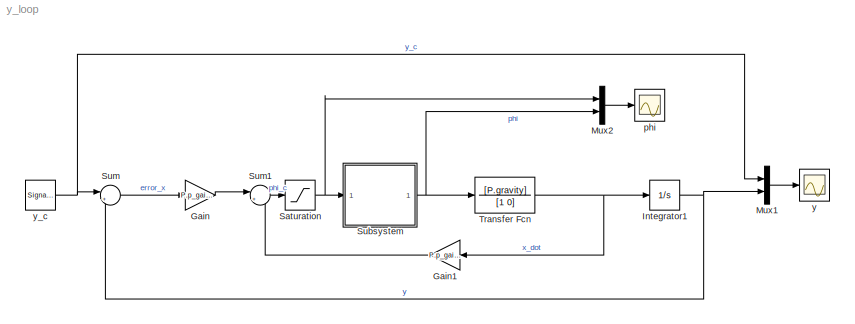
MODEL y_loop
KIND model
BLOCK [Gain] Gain
  Gain = P.p_gains.Kp_y
  OutDataTypeStr = Inherit: Inherit via internal rule
  ParamDataTypeStr = Inherit: Inherit via internal rule
  SID = 19
  SaturateOnIntegerOverflow = off
BLOCK [Gain] Gain1
  Gain = P.p_gains.Kd_y
  OutDataTypeStr = Inherit: Inherit via internal rule
  ParamDataTypeStr = Inherit: Inherit via internal rule
  SID = 20
  SaturateOnIntegerOverflow = off
BLOCK [Integrator] Integrator1
  Ports = [1, 1]
  SID = 21
BLOCK [Mux] Mux1
  DisplayOption = bar
  Inputs = 2
  Ports = [2, 1]
  SID = 22
BLOCK [Mux] Mux2
  DisplayOption = bar
  Inputs = 2
  Ports = [2, 1]
  SID = 23
BLOCK [Saturate] Saturation
  InputPortMap = u0
  LowerLimit = -P.roll_c_max
  Ports = [1, 1]
  SID = 42
  UpperLimit = P.roll_c_max
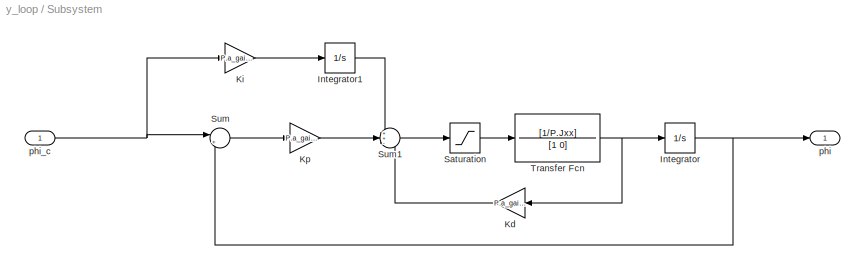
BLOCK [SubSystem] Subsystem
  FunctionWithSeparateData = off
  MaskHideContents = off
  MinAlgLoopOccurrences = off
  Opaque = off
  Ports = [1, 1]
  PropExecContextOutsideSubsystem = off
  RTWSystemCode = Auto
  RequestExecContextInheritance = off
  SID = 16
BLOCK [Integrator] Subsystem/Integrator
  Ports = [1, 1]
  SID = 1
BLOCK [Integrator] Subsystem/Integrator1
  Ports = [1, 1]
  SID = 9
BLOCK [Gain] Subsystem/Kd
  Gain = P.a_gains.Kd_roll
  OutDataTypeStr = Inherit: Inherit via internal rule
  ParamDataTypeStr = Inherit: Inherit via internal rule
  SID = 14
  SaturateOnIntegerOverflow = off
BLOCK [Gain] Subsystem/Ki
  Gain = P.a_gains.Ki_roll
  OutDataTypeStr = Inherit: Inherit via internal rule
  ParamDataTypeStr = Inherit: Inherit via internal rule
  SID = 6
  SaturateOnIntegerOverflow = off
BLOCK [Gain] Subsystem/Kp
  Gain = P.a_gains.Kp_roll
  OutDataTypeStr = Inherit: Inherit via internal rule
  ParamDataTypeStr = Inherit: Inherit via internal rule
  SID = 3
  SaturateOnIntegerOverflow = off
BLOCK [Saturate] Subsystem/Saturation
  InputPortMap = u0
  Ports = [1, 1]
  SID = 7
BLOCK [Sum] Subsystem/Sum
  IconShape = round
  InputSameDT = off
  Inputs = |+-
  OutDataTypeStr = Inherit: Inherit via internal rule
  Ports = [2, 1]
  SID = 5
  SaturateOnIntegerOverflow = off
BLOCK [Sum] Subsystem/Sum1
  IconShape = round
  InputSameDT = off
  Inputs = ++-
  OutDataTypeStr = Inherit: Inherit via internal rule
  Ports = [3, 1]
  SID = 8
  SaturateOnIntegerOverflow = off
BLOCK [TransferFcn] Subsystem/Transfer Fcn
  Denominator = [1 0]
  Numerator = [1/P.Jxx]
  SID = 2
BLOCK [Outport] Subsystem/phi
  IconDisplay = Port number
  SID = 18
BLOCK [Inport] Subsystem/phi_c
  IconDisplay = Port number
  SID = 17
BLOCK [Sum] Sum
  IconShape = round
  InputSameDT = off
  Inputs = |+-
  OutDataTypeStr = Inherit: Inherit via internal rule
  Ports = [2, 1]
  SID = 24
  SaturateOnIntegerOverflow = off
BLOCK [Sum] Sum1
  IconShape = round
  InputSameDT = off
  Inputs = |+-
  OutDataTypeStr = Inherit: Inherit via internal rule
  Ports = [2, 1]
  SID = 25
  SaturateOnIntegerOverflow = off
BLOCK [TransferFcn] Transfer Fcn
  Denominator = [1 0]
  Numerator = [P.gravity]
  SID = 26
BLOCK [Scope] phi
  DataFormat = StructureWithTime
  Floating = off
  NumInputPorts = 1
  Ports = [1]
  SID = 39
  SampleTime = 0
  SaveName = ScopeData1
  ShowLegends = off
  YMax = 750
  YMin = -50
  ZoomMode = yonly
BLOCK [Scope] y
  DataFormat = StructureWithTime
  Floating = off
  NumInputPorts = 1
  Ports = [1]
  SID = 40
  SampleTime = 0
  SaveName = ScopeData2
  ShowLegends = off
  TimeRange = 50
  YMax = 0.3
  YMin = -0.4
  ZoomMode = xonly
BLOCK [SignalGenerator] y_c
  Amplitude = 0.25
  Frequency = .05
  Ports = [0, 1]
  SID = 41
  WaveForm = square
LINE Gain1:1 -> Sum1:2
LINE Gain:1 -> Sum1:1
NET Integrator1:1 -> Mux1:2, Sum:2
LINE Mux1:1 -> y:1
LINE Mux2:1 -> phi:1
NET Saturation:1 -> Mux2:1, Subsystem:1
LINE Subsystem/Integrator1:1 -> Subsystem/Sum1:1
NET Subsystem/Integrator:1 -> Subsystem/Sum:2, Subsystem/phi:1
LINE Subsystem/Kd:1 -> Subsystem/Sum1:3
LINE Subsystem/Ki:1 -> Subsystem/Integrator1:1
LINE Subsystem/Kp:1 -> Subsystem/Sum1:2
LINE Subsystem/Saturation:1 -> Subsystem/Transfer Fcn:1
LINE Subsystem/Sum1:1 -> Subsystem/Saturation:1
LINE Subsystem/Sum:1 -> Subsystem/Kp:1
NET Subsystem/Transfer Fcn:1 -> Subsystem/Integrator:1, Subsystem/Kd:1
NET Subsystem/phi_c:1 -> Subsystem/Ki:1, Subsystem/Sum:1
NET Subsystem:1 -> Mux2:2, Transfer Fcn:1
LINE Sum1:1 -> Saturation:1
LINE Sum:1 -> Gain:1
NET Transfer Fcn:1 -> Gain1:1, Integrator1:1
NET y_c:1 -> Mux1:1, Sum:1
note: NET lines group one-source signal fan-out (src -> all destinations, sorted); 1:1 wires keep LINE
